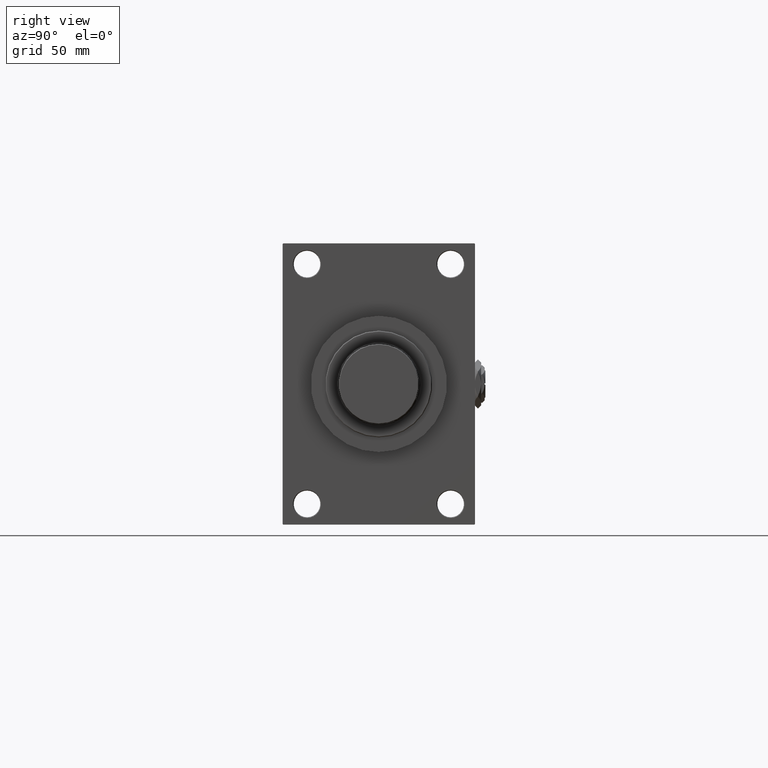
[diagram: clean part render]
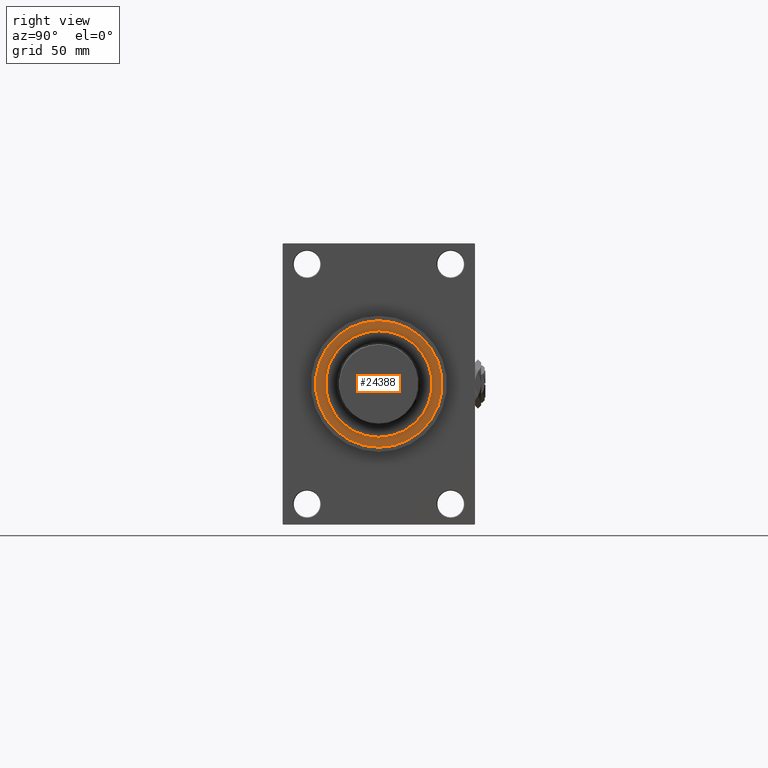
[diagram: same view with one face highlighted and labeled with its STEP entity id]
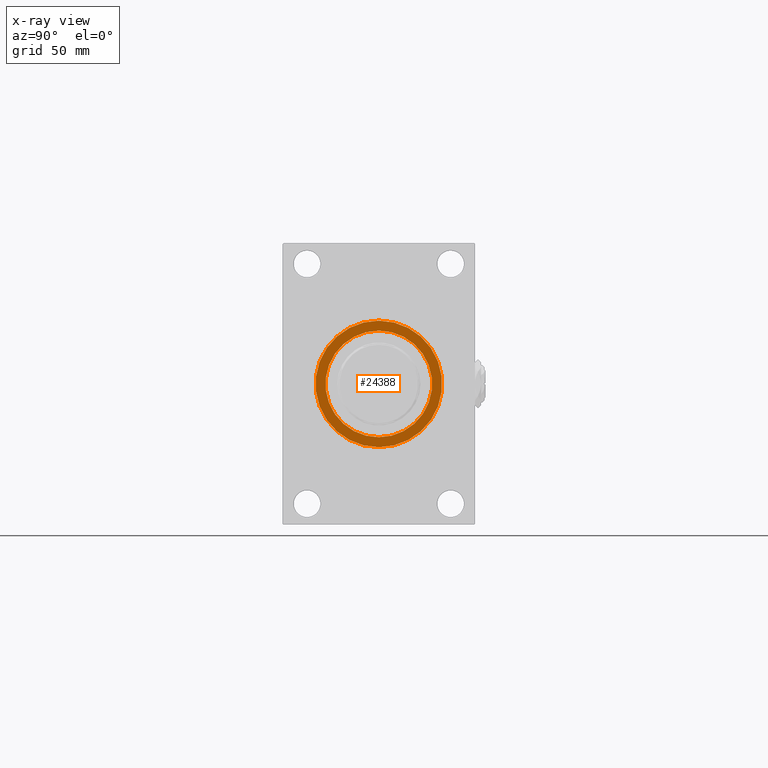
[diagram: x-ray of the same camera — body ghosted, the highlighted face saturated]
A machine part, right view. The second image highlights one B-rep face of the part: STEP entity #24388.
The next image is the same camera in x-ray: the body ghosted, the highlighted face saturated — about 0% of this face is hidden behind the body in this view.
In plain terms, the highlighted planar face has unit normal (1, -0, -0).
Its self-contained STEP definition (entity closure, byte-faithful):
#2647 = CARTESIAN_POINT ( 'NONE',  ( 0.000000000000000000, 0.000000000000000000, 43.25999999999999801 ) ) ;
#3437 = CARTESIAN_POINT ( 'NONE',  ( -36.00000000000000000, 0.000000000000000000, 43.25999999999999801 ) ) ;
#3843 = VERTEX_POINT ( 'NONE', #33672 ) ;
#4153 = DIRECTION ( 'NONE',  ( 1.000000000000000000, 0.000000000000000000, 0.000000000000000000 ) ) ;
#4413 = CARTESIAN_POINT ( 'NONE',  ( 0.000000000000000000, 0.000000000000000000, 43.25999999999999801 ) ) ;
#5464 = EDGE_CURVE ( 'NONE', #22403, #45647, #35007, .T. ) ;
#5574 = FACE_OUTER_BOUND ( 'NONE', #13404, .T. ) ;
#8526 = ORIENTED_EDGE ( 'NONE', *, *, #26927, .T. ) ;
#13404 = EDGE_LOOP ( 'NONE', ( #14104, #8526 ) ) ;
#13485 = VERTEX_POINT ( 'NONE', #24826 ) ;
#14104 = ORIENTED_EDGE ( 'NONE', *, *, #44148, .T. ) ;
#14500 = DIRECTION ( 'NONE',  ( 0.000000000000000000, 0.000000000000000000, 1.000000000000000000 ) ) ;
#14869 = AXIS2_PLACEMENT_3D ( 'NONE', #2647, #29880, #34445 ) ;
#17293 = PLANE ( 'NONE',  #19985 ) ;
#18804 = CARTESIAN_POINT ( 'NONE',  ( 0.000000000000000000, 0.000000000000000000, 43.25999999999999801 ) ) ;
#19174 = DIRECTION ( 'NONE',  ( 0.000000000000000000, 0.000000000000000000, 1.000000000000000000 ) ) ;
#19985 = AXIS2_PLACEMENT_3D ( 'NONE', #36881, #36623, #28992 ) ;
#22403 = VERTEX_POINT ( 'NONE', #3437 ) ;
#24388 = ADVANCED_FACE ( 'NONE', ( #25163, #5574 ), #17293, .T. ) ;
#24676 = ORIENTED_EDGE ( 'NONE', *, *, #49235, .F. ) ;
#24826 = CARTESIAN_POINT ( 'NONE',  ( 42.75000000000000000, 5.235365066354935472E-15, 43.25999999999999801 ) ) ;
#25163 = FACE_BOUND ( 'NONE', #41641, .T. ) ;
#26557 = CIRCLE ( 'NONE', #46868, 42.75000000000000000 ) ;
#26927 = EDGE_CURVE ( 'NONE', #13485, #3843, #26557, .T. ) ;
#28992 = DIRECTION ( 'NONE',  ( 1.000000000000000000, 0.000000000000000000, -0.000000000000000000 ) ) ;
#29880 = DIRECTION ( 'NONE',  ( 0.000000000000000000, 0.000000000000000000, 1.000000000000000000 ) ) ;
#30016 = CARTESIAN_POINT ( 'NONE',  ( 36.00000000000000000, 4.408728476930470856E-15, 43.25999999999999801 ) ) ;
#33374 = AXIS2_PLACEMENT_3D ( 'NONE', #4413, #19174, #4153 ) ;
#33672 = CARTESIAN_POINT ( 'NONE',  ( -42.75000000000000000, 0.000000000000000000, 43.25999999999999801 ) ) ;
#34445 = DIRECTION ( 'NONE',  ( 1.000000000000000000, 0.000000000000000000, 0.000000000000000000 ) ) ;
#35007 = CIRCLE ( 'NONE', #33374, 36.00000000000000000 ) ;
#36199 = CIRCLE ( 'NONE', #45136, 36.00000000000000000 ) ;
#36312 = DIRECTION ( 'NONE',  ( 0.000000000000000000, 0.000000000000000000, 1.000000000000000000 ) ) ;
#36623 = DIRECTION ( 'NONE',  ( 0.000000000000000000, 0.000000000000000000, 1.000000000000000000 ) ) ;
#36808 = CIRCLE ( 'NONE', #14869, 42.75000000000000000 ) ;
#36821 = DIRECTION ( 'NONE',  ( 1.000000000000000000, 0.000000000000000000, 0.000000000000000000 ) ) ;
#36881 = CARTESIAN_POINT ( 'NONE',  ( 0.000000000000000000, 0.000000000000000000, 43.25999999999999801 ) ) ;
#41461 = DIRECTION ( 'NONE',  ( 1.000000000000000000, 0.000000000000000000, 0.000000000000000000 ) ) ;
#41641 = EDGE_LOOP ( 'NONE', ( #41864, #24676 ) ) ;
#41864 = ORIENTED_EDGE ( 'NONE', *, *, #5464, .F. ) ;
#44148 = EDGE_CURVE ( 'NONE', #3843, #13485, #36808, .T. ) ;
#44700 = CARTESIAN_POINT ( 'NONE',  ( 0.000000000000000000, 0.000000000000000000, 43.25999999999999801 ) ) ;
#45136 = AXIS2_PLACEMENT_3D ( 'NONE', #18804, #14500, #41461 ) ;
#45647 = VERTEX_POINT ( 'NONE', #30016 ) ;
#46868 = AXIS2_PLACEMENT_3D ( 'NONE', #44700, #36312, #36821 ) ;
#49235 = EDGE_CURVE ( 'NONE', #45647, #22403, #36199, .T. ) ;